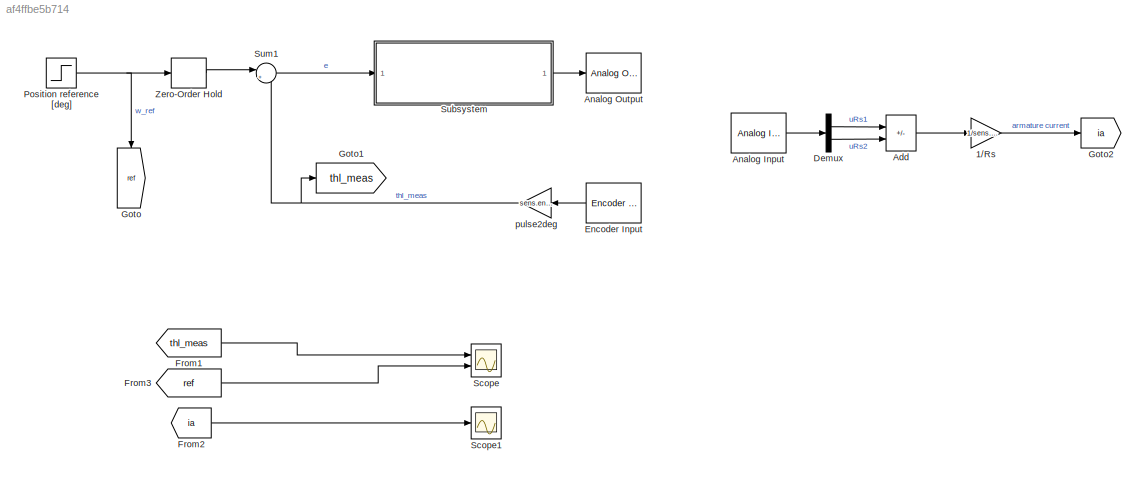
MODEL slx_af4ffbe5b714
KIND model
CONFIG AbsTol = auto
CONFIG EnableMultiTasking = off
CONFIG FixedStep = Ts
CONFIG MaxStep = auto
CONFIG MinStep = auto
CONFIG RelTol = 1e-3
CONFIG SampleTimeConstraint = Unconstrained
CONFIG SolverName = FixedStepDiscrete
CONFIG StartTime = 0.0
CONFIG StopTime = 5
BLOCK [Gain] 1//Rs
  Gain = 1/sens.curr.Rs
BLOCK [Sum] Add
  IconShape = rectangular
  Inputs = +-
  Ports = [2, 1]
BLOCK [Reference] Analog Input  REF=sldrtlib/Analog Input
  AttributesFormatString = National Instruments\nPCI-6221 [auto]
  Ports = [0, 1]
  SourceBlock = sldrtlib/Analog Input
  SourceProductBaseCode = WT
  SourceType = Simulink Desktop Real-Time Analog Input
BLOCK [Reference] Analog Output  REF=sldrtlib/Analog Output
  AttributesFormatString = National Instruments\nPCI-6221 [auto]
  Ports = [1]
  SourceBlock = sldrtlib/Analog Output
  SourceProductBaseCode = WT
  SourceType = Simulink Desktop Real-Time Analog Output
BLOCK [Demux] Demux
  Outputs = 2
  Ports = [1, 2]
BLOCK [Reference] Encoder Input  REF=sldrtlib/Encoder Input
  AttributesFormatString = National Instruments\nPCI-6221 [auto]
  NameLocation = top
  Ports = [0, 1]
  SourceBlock = sldrtlib/Encoder Input
  SourceProductBaseCode = WT
  SourceType = Simulink Desktop Real-Time Encoder Input
BLOCK [From] From1
  GotoTag = thl_meas
BLOCK [From] From2
  GotoTag = ia
BLOCK [From] From3
  GotoTag = ref
BLOCK [Goto] Goto
  GotoTag = ref
  NameLocation = left
BLOCK [Goto] Goto1
  GotoTag = thl_meas
BLOCK [Goto] Goto2
  GotoTag = ia
BLOCK [Step] Position reference [deg]
  After = finalValue
  SampleTime = 0
BLOCK [Scope] Scope
  Floating = off
  NumInputPorts = 2
  Ports = [2]
  ScopeSpecificationString = Simulink.scopes.TimeScopeBlockCfg('CurrentConfiguration', extmgr.ConfigurationSet(extmgr.Configuration('Core','General UI',true),extmgr.Configuration('Core','Source UI',true),extmgr.Configuration('Sources','WiredSimulink',true,'DataLoggingVariableName','ScopeThl','DataLogging',true,'DataLoggingSaveFormat','StructureWithTime'),extmgr.Configuration('Visuals','Time Domain',true,'SerializedDisplays',{...<+1378ch>
BLOCK [Scope] Scope1
  Floating = off
  NumInputPorts = 1
  Ports = [1]
  ScopeSpecificationString = Simulink.scopes.TimeScopeBlockCfg('CurrentConfiguration', extmgr.ConfigurationSet(extmgr.Configuration('Core','General UI',true),extmgr.Configuration('Core','Source UI',true),extmgr.Configuration('Sources','WiredSimulink',true,'DataLoggingVariableName','ScopeDataIa','DataLogging',true,'DataLoggingSaveFormat','StructureWithTime'),extmgr.Configuration('Visuals','Time Domain',true,'SerializedDisplays...<+1381ch>
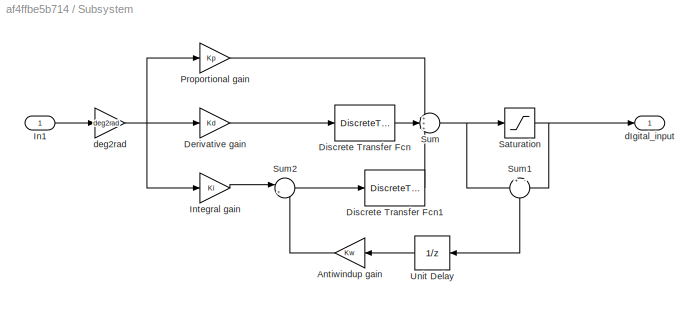
BLOCK [SubSystem] Subsystem
  Ports = [1, 1]
  RequestExecContextInheritance = off
BLOCK [Gain] Subsystem/Antiwindup gain
  Gain = Kw
  NameLocation = top
BLOCK [Gain] Subsystem/Derivative gain
  Gain = Kd
BLOCK [DiscreteTransferFcn] Subsystem/Discrete Transfer Fcn
  Denominator = CDer.Denominator{1}
  InputPortMap = u0
  Numerator = CDer.Numerator{1}
  Ports = [1, 1]
  SampleTime = Ts
BLOCK [DiscreteTransferFcn] Subsystem/Discrete Transfer Fcn1
  Denominator = CInt.Denominator{1}
  InputPortMap = u0
  Numerator = CInt.Numerator{1}
  Ports = [1, 1]
  SampleTime = Ts
BLOCK [Inport] Subsystem/In1
BLOCK [Gain] Subsystem/Integral gain
  Gain = Ki
BLOCK [Gain] Subsystem/Proportional gain
  Gain = Kp
BLOCK [Saturate] Subsystem/Saturation
  LowerLimit = -10
  NameLocation = top
  UpperLimit = 10
BLOCK [Sum] Subsystem/Sum
  Inputs = +++
  Ports = [3, 1]
BLOCK [Sum] Subsystem/Sum1
  Inputs = +|-
  NameLocation = left
  Ports = [2, 1]
BLOCK [Sum] Subsystem/Sum2
  Inputs = |+-
  Ports = [2, 1]
BLOCK [UnitDelay] Subsystem/Unit Delay
  HasFrameUpgradeWarning = on
  NameLocation = top
  SampleTime = -1
BLOCK [Outport] Subsystem/dIgital_input
BLOCK [Gain] Subsystem/deg2rad
  Gain = deg2rad
BLOCK [Sum] Sum1
  Inputs = |+-
  Ports = [2, 1]
BLOCK [ZeroOrderHold] Zero-Order Hold
  SampleTime = Ts
BLOCK [Gain] pulse2deg
  Gain = sens.enc.pulse2deg
LINE 1//Rs:1 -> Goto2:1
LINE Add:1 -> 1//Rs:1
LINE Analog Input:1 -> Demux:1
LINE Demux:1 -> Add:1
LINE Demux:2 -> Add:2
LINE Encoder Input:1 -> pulse2deg:1
LINE From1:1 -> Scope:1
LINE From2:1 -> Scope1:1
LINE From3:1 -> Scope:2
NET Position reference [deg]:1 -> Goto:1, Zero-Order Hold:1
LINE Subsystem/Antiwindup gain:1 -> Subsystem/Sum2:2
LINE Subsystem/Derivative gain:1 -> Subsystem/Discrete Transfer Fcn:1
LINE Subsystem/Discrete Transfer Fcn1:1 -> Subsystem/Sum:3
LINE Subsystem/Discrete Transfer Fcn:1 -> Subsystem/Sum:2
LINE Subsystem/In1:1 -> Subsystem/deg2rad:1
LINE Subsystem/Integral gain:1 -> Subsystem/Sum2:1
LINE Subsystem/Proportional gain:1 -> Subsystem/Sum:1
NET Subsystem/Saturation:1 -> Subsystem/Sum1:2, Subsystem/dIgital_input:1
LINE Subsystem/Sum1:1 -> Subsystem/Unit Delay:1
LINE Subsystem/Sum2:1 -> Subsystem/Discrete Transfer Fcn1:1
NET Subsystem/Sum:1 -> Subsystem/Saturation:1, Subsystem/Sum1:1
LINE Subsystem/Unit Delay:1 -> Subsystem/Antiwindup gain:1
NET Subsystem/deg2rad:1 -> Subsystem/Derivative gain:1, Subsystem/Integral gain:1, Subsystem/Proportional gain:1
LINE Subsystem:1 -> Analog Output:1
LINE Sum1:1 -> Subsystem:1
LINE Zero-Order Hold:1 -> Sum1:1
NET pulse2deg:1 -> Goto1:1, Sum1:2
note: NET lines group one-source signal fan-out (src -> all destinations, sorted); 1:1 wires keep LINE
